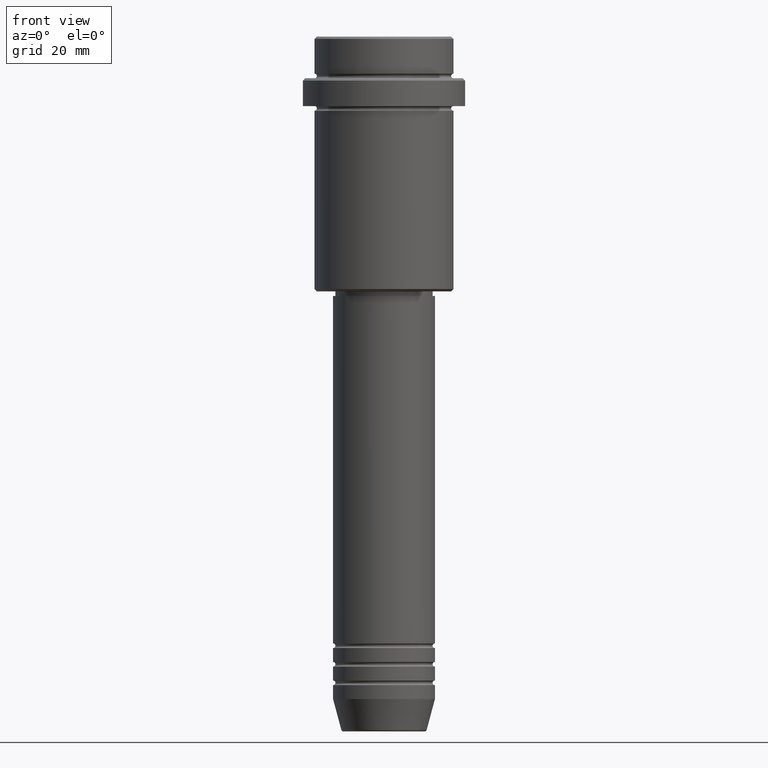
[diagram: clean part render]
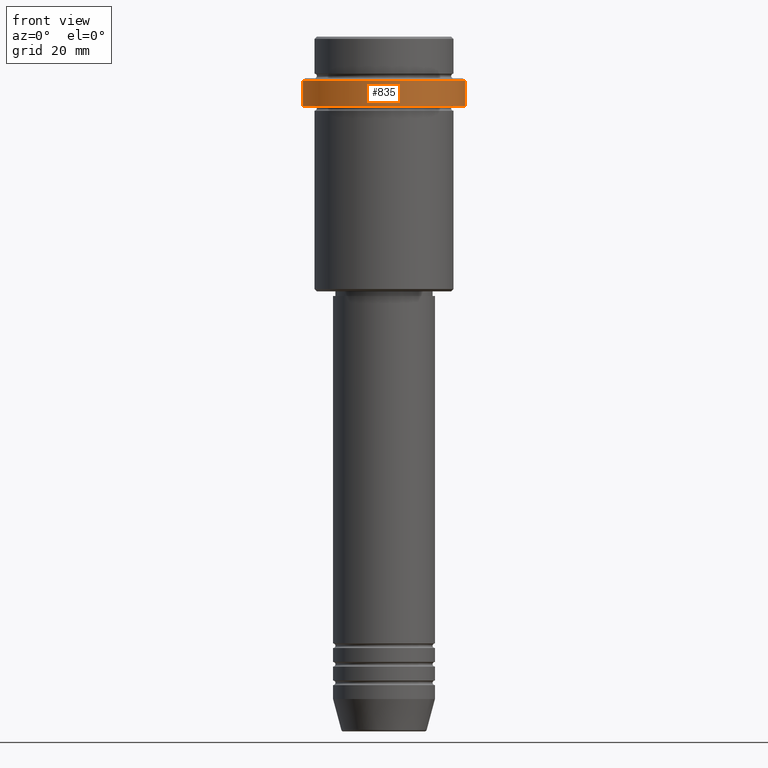
[diagram: same view with one face highlighted and labeled with its STEP entity id]
A machine part, front view. The second image highlights one B-rep face of the part: STEP entity #835.
In plain terms, the highlighted cylindrical surface (partial cylindrical patch) has radius 17.5 mm, axis along (-0, -0, 1).
Its self-contained STEP definition (entity closure, byte-faithful):
#5 = ORIENTED_EDGE ( 'NONE', *, *, #1335, .F. ) ;
#10 = ORIENTED_EDGE ( 'NONE', *, *, #992, .T. ) ;
#23 = VECTOR ( 'NONE', #664, 1000.000000000000000 ) ;
#27 = DIRECTION ( 'NONE',  ( 1.000000000000000000, 0.000000000000000000, 0.000000000000000000 ) ) ;
#57 = CARTESIAN_POINT ( 'NONE',  ( 0.000000000000000000, 0.000000000000000000, -14.99999999999998757 ) ) ;
#86 = AXIS2_PLACEMENT_3D ( 'NONE', #57, #1369, #1267 ) ;
#130 = CARTESIAN_POINT ( 'NONE',  ( 0.000000000000000000, 0.000000000000000000, 0.000000000000000000 ) ) ;
#236 = EDGE_CURVE ( 'NONE', #552, #736, #1343, .T. ) ;
#295 = ORIENTED_EDGE ( 'NONE', *, *, #236, .T. ) ;
#318 = DIRECTION ( 'NONE',  ( -0.000000000000000000, -0.000000000000000000, 1.000000000000000000 ) ) ;
#327 = ORIENTED_EDGE ( 'NONE', *, *, #881, .T. ) ;
#345 = CARTESIAN_POINT ( 'NONE',  ( -17.50000000000000000, 2.143131898507868248E-15, 0.000000000000000000 ) ) ;
#383 = AXIS2_PLACEMENT_3D ( 'NONE', #130, #887, #27 ) ;
#388 = VERTEX_POINT ( 'NONE', #872 ) ;
#445 = CARTESIAN_POINT ( 'NONE',  ( 17.50000000000000000, 0.000000000000000000, 0.000000000000000000 ) ) ;
#552 = VERTEX_POINT ( 'NONE', #1246 ) ;
#577 = VERTEX_POINT ( 'NONE', #811 ) ;
#664 = DIRECTION ( 'NONE',  ( -0.000000000000000000, -0.000000000000000000, 1.000000000000000000 ) ) ;
#687 = LINE ( 'NONE', #445, #1388 ) ;
#736 = VERTEX_POINT ( 'NONE', #964 ) ;
#811 = CARTESIAN_POINT ( 'NONE',  ( -17.50000000000000000, 2.143131898507868248E-15, -14.99999999999998757 ) ) ;
#831 = DIRECTION ( 'NONE',  ( 0.000000000000000000, 0.000000000000000000, -1.000000000000000000 ) ) ;
#835 = ADVANCED_FACE ( 'NONE', ( #1005 ), #1126, .T. ) ;
#872 = CARTESIAN_POINT ( 'NONE',  ( 17.50000000000000000, 0.000000000000000000, -14.99999999999998757 ) ) ;
#881 = EDGE_CURVE ( 'NONE', #388, #552, #687, .T. ) ;
#887 = DIRECTION ( 'NONE',  ( -0.000000000000000000, -0.000000000000000000, 1.000000000000000000 ) ) ;
#894 = EDGE_LOOP ( 'NONE', ( #5, #10, #327, #295 ) ) ;
#964 = CARTESIAN_POINT ( 'NONE',  ( -17.50000000000000000, 2.143131898507868248E-15, -9.500000000000028422 ) ) ;
#992 = EDGE_CURVE ( 'NONE', #577, #388, #1233, .T. ) ;
#1005 = FACE_OUTER_BOUND ( 'NONE', #894, .T. ) ;
#1028 = AXIS2_PLACEMENT_3D ( 'NONE', #1176, #831, #1377 ) ;
#1126 = CYLINDRICAL_SURFACE ( 'NONE', #383, 17.50000000000000000 ) ;
#1176 = CARTESIAN_POINT ( 'NONE',  ( 0.000000000000000000, 0.000000000000000000, -9.500000000000028422 ) ) ;
#1233 = CIRCLE ( 'NONE', #86, 17.50000000000000000 ) ;
#1246 = CARTESIAN_POINT ( 'NONE',  ( 17.50000000000000000, 0.000000000000000000, -9.500000000000028422 ) ) ;
#1267 = DIRECTION ( 'NONE',  ( 1.000000000000000000, 0.000000000000000000, 0.000000000000000000 ) ) ;
#1331 = LINE ( 'NONE', #345, #23 ) ;
#1335 = EDGE_CURVE ( 'NONE', #577, #736, #1331, .T. ) ;
#1343 = CIRCLE ( 'NONE', #1028, 17.50000000000000000 ) ;
#1369 = DIRECTION ( 'NONE',  ( -0.000000000000000000, -0.000000000000000000, 1.000000000000000000 ) ) ;
#1377 = DIRECTION ( 'NONE',  ( 1.000000000000000000, 0.000000000000000000, 0.000000000000000000 ) ) ;
#1388 = VECTOR ( 'NONE', #318, 1000.000000000000000 ) ;